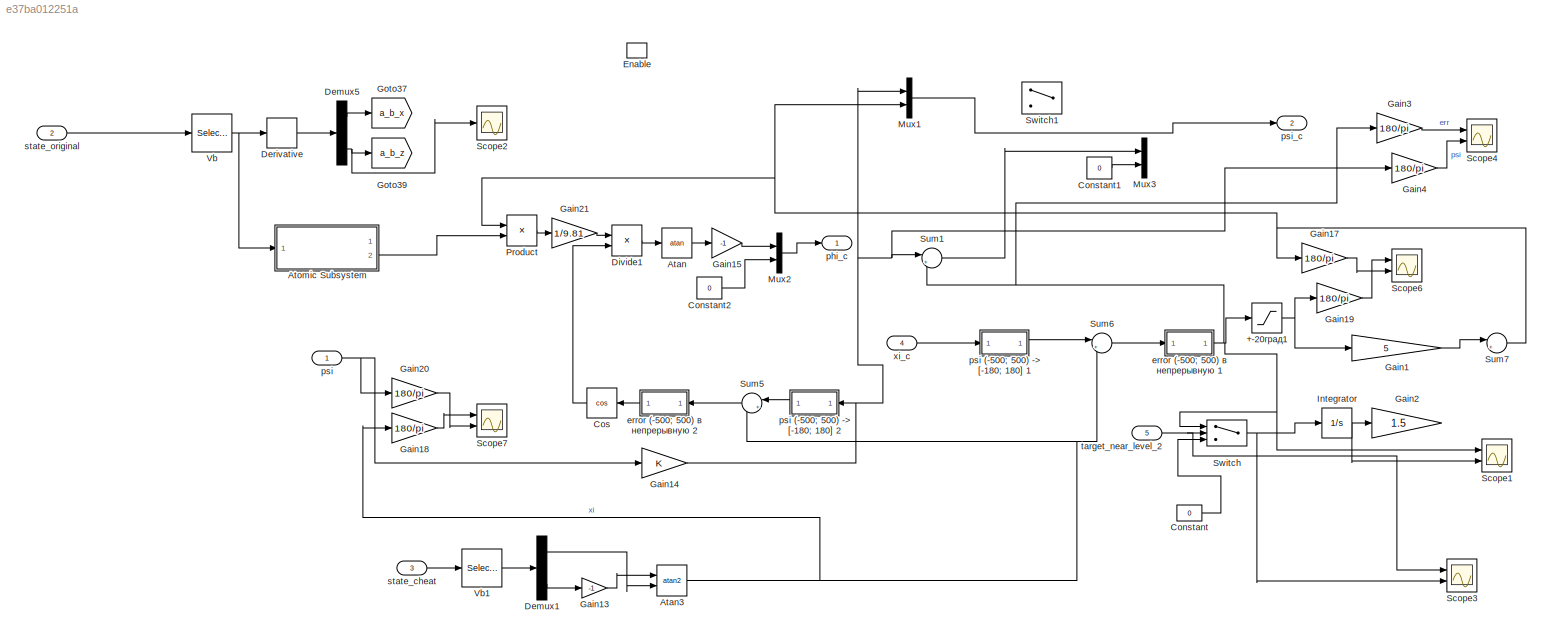
MODEL slx_e37ba012251a
KIND model
CONFIG AbsTol = auto
CONFIG EnableMultiTasking = off
CONFIG FixedStep = auto
CONFIG MaxStep = auto
CONFIG MinStep = auto
CONFIG RelTol = 1e-3
CONFIG SampleTimeConstraint = Unconstrained
CONFIG Solver = VariableStepAuto
CONFIG SolverName = VariableStepAuto
CONFIG StartTime = 0.0
CONFIG StopTime = 10.0
BLOCK [Saturate] +-20град1
  LowerLimit = -deg2rad(20)
  UpperLimit = deg2rad(20)
BLOCK [Trigonometry] Atan
  Operator = atan
  Ports = [1, 1]
BLOCK [Trigonometry] Atan3
  Operator = atan2
  Ports = [2, 1]
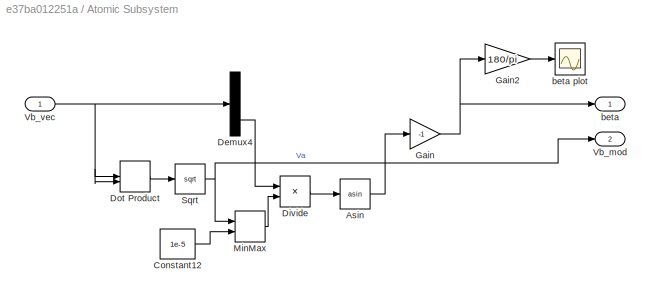
BLOCK [SubSystem] Atomic Subsystem
  Ports = [1, 2]
  RequestExecContextInheritance = off
  TreatAsAtomicUnit = on
BLOCK [Trigonometry] Atomic Subsystem/Asin
  Operator = asin
  Ports = [1, 1]
BLOCK [Constant] Atomic Subsystem/Constant12
  Value = 1e-5
BLOCK [Demux] Atomic Subsystem/Demux4
  Outputs = 3
  Ports = [1, 3]
BLOCK [Product] Atomic Subsystem/Divide
  Inputs = */
  Ports = [2, 1]
BLOCK [DotProduct] Atomic Subsystem/Dot Product
  OutDataTypeStr = Inherit: Inherit via internal rule
BLOCK [Gain] Atomic Subsystem/Gain
  Gain = -1
BLOCK [Gain] Atomic Subsystem/Gain2
  Gain = 180/pi
BLOCK [MinMax] Atomic Subsystem/MinMax
  Function = max
  Inputs = 2
  Ports = [2, 1]
BLOCK [Sqrt] Atomic Subsystem/Sqrt
BLOCK [Outport] Atomic Subsystem/Vb_mod
  Port = 2
BLOCK [Inport] Atomic Subsystem/Vb_vec
BLOCK [Outport] Atomic Subsystem/beta
BLOCK [Scope] Atomic Subsystem/beta plot
  Floating = off
  NumInputPorts = 1
  Ports = [1]
  ScopeSpecificationString = Simulink.scopes.TimeScopeBlockCfg('CurrentConfiguration', extmgr.ConfigurationSet(extmgr.Configuration('Core','General UI',true),extmgr.Configuration('Core','Source UI',true),extmgr.Configuration('Sources','WiredSimulink',true),extmgr.Configuration('Visuals','Time Domain',true),extmgr.Configuration('Tools','Plot Navigation',true),extmgr.Configuration('Tools','Measurements',true)),'Version','2020a'...<+1ch>
BLOCK [Constant] Constant
  Value = 0
BLOCK [Constant] Constant1
  Value = 0
BLOCK [Constant] Constant2
  Value = 0
BLOCK [Trigonometry] Cos
  NameLocation = top
  Operator = cos
  Ports = [1, 1]
BLOCK [Demux] Demux1
  Outputs = 3
  Ports = [1, 3]
BLOCK [Demux] Demux5
  Outputs = 3
  Ports = [1, 3]
BLOCK [Derivative] Derivative
BLOCK [Product] Divide1
  Inputs = */
  Ports = [2, 1]
BLOCK [EnablePort] Enable
  Ports = []
BLOCK [Gain] Gain1
  Gain = 5
BLOCK [Gain] Gain13
  Gain = -1
BLOCK [Gain] Gain14
BLOCK [Gain] Gain15
  Gain = -1
BLOCK [Gain] Gain17
  Gain = 180/pi
BLOCK [Gain] Gain18
  Gain = 180/pi
BLOCK [Gain] Gain19
  Gain = 180/pi
BLOCK [Gain] Gain2
  Gain = 1.5
BLOCK [Gain] Gain20
  Gain = 180/pi
BLOCK [Gain] Gain21
  Gain = 1/9.81
BLOCK [Gain] Gain3
  Gain = 180/pi
BLOCK [Gain] Gain4
  Gain = 180/pi
BLOCK [Goto] Goto37
  GotoTag = a_b_x
BLOCK [Goto] Goto39
  GotoTag = a_b_z
BLOCK [Integrator] Integrator
  Ports = [1, 1]
BLOCK [Mux] Mux1
  DisplayOption = bar
  Inputs = 2
  Ports = [2, 1]
BLOCK [Mux] Mux2
  DisplayOption = bar
  Inputs = 2
  Ports = [2, 1]
BLOCK [Mux] Mux3
  DisplayOption = bar
  Inputs = 2
  Ports = [2, 1]
BLOCK [Product] Product
  Ports = [2, 1]
BLOCK [Scope] Scope1
  Floating = off
  NumInputPorts = 2
  Ports = [2]
  ScopeSpecificationString = Simulink.scopes.TimeScopeBlockCfg('CurrentConfiguration', extmgr.ConfigurationSet(extmgr.Configuration('Core','General UI',true),extmgr.Configuration('Core','Source UI',true),extmgr.Configuration('Sources','WiredSimulink',true,'DataLoggingVariableName','ScopeData1'),extmgr.Configuration('Visuals','Time Domain',true,'SerializedDisplays',{struct('MinYLimReal','-1.70408','MaxYLimReal','2.80734','YLab...<+1593ch>
BLOCK [Scope] Scope2
  Floating = off
  NumInputPorts = 1
  Ports = [1]
  ScopeSpecificationString = Simulink.scopes.TimeScopeBlockCfg('CurrentConfiguration', extmgr.ConfigurationSet(extmgr.Configuration('Core','General UI',true),extmgr.Configuration('Core','Source UI',true),extmgr.Configuration('Sources','WiredSimulink',true,'DataLoggingVariableName','ScopeData3'),extmgr.Configuration('Visuals','Time Domain',true,'SerializedDisplays',{struct('MinYLimReal','-16.01854','MaxYLimReal','42.66082','YL...<+1562ch>
BLOCK [Scope] Scope3
  Floating = off
  NumInputPorts = 2
  Ports = [2]
  ScopeSpecificationString = Simulink.scopes.TimeScopeBlockCfg('CurrentConfiguration', extmgr.ConfigurationSet(extmgr.Configuration('Core','General UI',true),extmgr.Configuration('Core','Source UI',true),extmgr.Configuration('Sources','WiredSimulink',true,'DataLoggingVariableName','ScopeData1'),extmgr.Configuration('Visuals','Time Domain',true,'SerializedDisplays',{struct('MinYLimReal','-1.80298','MaxYLimReal','1.31144','YLab...<+1575ch>
BLOCK [Scope] Scope4
  Floating = off
  NumInputPorts = 2
  Ports = [2]
  ScopeSpecificationString = Simulink.scopes.TimeScopeBlockCfg('CurrentConfiguration', extmgr.ConfigurationSet(extmgr.Configuration('Core','General UI',true),extmgr.Configuration('Core','Source UI',true),extmgr.Configuration('Sources','WiredSimulink',true,'DataLoggingVariableName','ScopeData1'),extmgr.Configuration('Visuals','Time Domain',true,'SerializedDisplays',{struct('MinYLimReal','-249.18985','MaxYLimReal','445.25356','...<+1570ch>
BLOCK [Scope] Scope6
  Floating = off
  NumInputPorts = 2
  Ports = [2]
  ScopeSpecificationString = Simulink.scopes.TimeScopeBlockCfg('CurrentConfiguration', extmgr.ConfigurationSet(extmgr.Configuration('Core','General UI',true),extmgr.Configuration('Core','Source UI',true),extmgr.Configuration('Sources','WiredSimulink',true,'DataLoggingVariableName','ScopeData6'),extmgr.Configuration('Visuals','Time Domain',true,'SerializedDisplays',{struct('MinYLimReal','-1.00000','MaxYLimReal','1.00000','YLab...<+1568ch>
BLOCK [Scope] Scope7
  Floating = off
  NumInputPorts = 2
  Ports = [2]
  ScopeSpecificationString = Simulink.scopes.TimeScopeBlockCfg('CurrentConfiguration', extmgr.ConfigurationSet(extmgr.Configuration('Core','General UI',true),extmgr.Configuration('Core','Source UI',true),extmgr.Configuration('Sources','WiredSimulink',true,'DataLoggingVariableName','ScopeData7'),extmgr.Configuration('Visuals','Time Domain',true,'SerializedDisplays',{struct('MinYLimReal','-202.49004','MaxYLimReal','22.49889','Y...<+1606ch>
BLOCK [Sum] Sum1
  Inputs = |++
  Ports = [2, 1]
BLOCK [Sum] Sum5
  Inputs = |+-
  NameLocation = top
  Ports = [2, 1]
BLOCK [Sum] Sum6
  Inputs = |+-
  Ports = [2, 1]
BLOCK [Sum] Sum7
  Inputs = |++
  Ports = [2, 1]
BLOCK [Switch] Switch
  Criteria = u2 > Threshold
  InputSameDT = off
  SaturateOnIntegerOverflow = off
BLOCK [Switch] Switch1
  Criteria = u2 > Threshold
  InputSameDT = off
  SaturateOnIntegerOverflow = off
BLOCK [Selector] Vb
  IndexOptions = Index vector (dialog)
  Indices = [4:6]
  InputPortWidth = 12
  OutputSizes = 1
  Ports = [1, 1]
BLOCK [Selector] Vb1
  IndexOptions = Index vector (dialog)
  Indices = [4:6]
  InputPortWidth = 15
  OutputSizes = 1
  Ports = [1, 1]
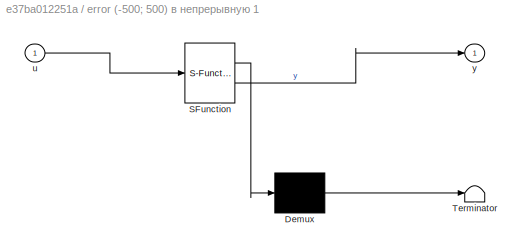
BLOCK [SubSystem] error (-500; 500) в непрерывную 1
  ErrorFcn = Stateflow.Translate.translate
  PermitHierarchicalResolution = ExplicitOnly
  Ports = [1, 1]
  RequestExecContextInheritance = off
  SFBlockType = MATLAB Function
  TreatAsAtomicUnit = on
BLOCK [Demux] error (-500; 500) в непрерывную 1/ Demux 
  Outputs = 1
  Ports = [1, 1]
BLOCK [S-Function] error (-500; 500) в непрерывную 1/ SFunction 
  EnableBusSupport = on
  FunctionName = sf_sfun
  PortCounts = [1 2]
  Ports = [1, 2]
  SFcnIsStateOwnerBlock = off
  SFunctionDeploymentMode = off
  Tag = Stateflow S-Function 3
BLOCK [Terminator] error (-500; 500) в непрерывную 1/ Terminator 
BLOCK [Inport] error (-500; 500) в непрерывную 1/u
BLOCK [Outport] error (-500; 500) в непрерывную 1/y
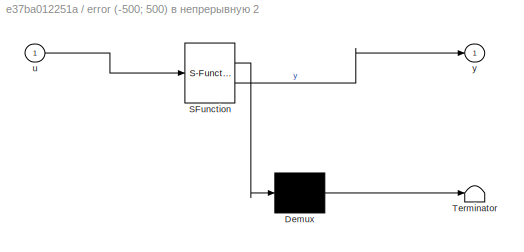
BLOCK [SubSystem] error (-500; 500) в непрерывную 2
  ErrorFcn = Stateflow.Translate.translate
  NameLocation = top
  PermitHierarchicalResolution = ExplicitOnly
  Ports = [1, 1]
  RequestExecContextInheritance = off
  SFBlockType = MATLAB Function
  TreatAsAtomicUnit = on
BLOCK [Demux] error (-500; 500) в непрерывную 2/ Demux 
  Outputs = 1
  Ports = [1, 1]
BLOCK [S-Function] error (-500; 500) в непрерывную 2/ SFunction 
  EnableBusSupport = on
  FunctionName = sf_sfun
  PortCounts = [1 2]
  Ports = [1, 2]
  SFcnIsStateOwnerBlock = off
  SFunctionDeploymentMode = off
  Tag = Stateflow S-Function 4
BLOCK [Terminator] error (-500; 500) в непрерывную 2/ Terminator 
BLOCK [Inport] error (-500; 500) в непрерывную 2/u
BLOCK [Outport] error (-500; 500) в непрерывную 2/y
BLOCK [Outport] phi_c
BLOCK [Inport] psi
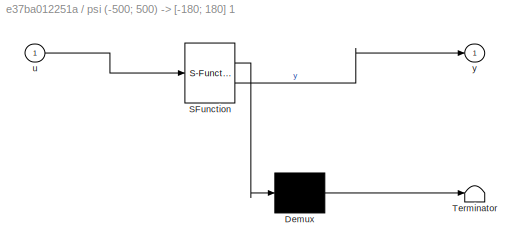
BLOCK [SubSystem] psi (-500; 500) -> [-180; 180] 1
  ErrorFcn = Stateflow.Translate.translate
  PermitHierarchicalResolution = ExplicitOnly
  Ports = [1, 1]
  RequestExecContextInheritance = off
  SFBlockType = MATLAB Function
  TreatAsAtomicUnit = on
BLOCK [Demux] psi (-500; 500) -> [-180; 180] 1/ Demux 
  Outputs = 1
  Ports = [1, 1]
BLOCK [S-Function] psi (-500; 500) -> [-180; 180] 1/ SFunction 
  EnableBusSupport = on
  FunctionName = sf_sfun
  PortCounts = [1 2]
  Ports = [1, 2]
  SFcnIsStateOwnerBlock = off
  SFunctionDeploymentMode = off
  Tag = Stateflow S-Function 2
BLOCK [Terminator] psi (-500; 500) -> [-180; 180] 1/ Terminator 
BLOCK [Inport] psi (-500; 500) -> [-180; 180] 1/u
BLOCK [Outport] psi (-500; 500) -> [-180; 180] 1/y
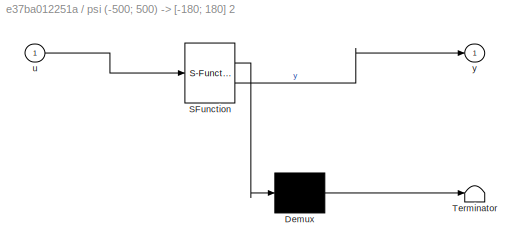
BLOCK [SubSystem] psi (-500; 500) -> [-180; 180] 2
  ErrorFcn = Stateflow.Translate.translate
  NameLocation = top
  PermitHierarchicalResolution = ExplicitOnly
  Ports = [1, 1]
  RequestExecContextInheritance = off
  SFBlockType = MATLAB Function
  TreatAsAtomicUnit = on
BLOCK [Demux] psi (-500; 500) -> [-180; 180] 2/ Demux 
  Outputs = 1
  Ports = [1, 1]
BLOCK [S-Function] psi (-500; 500) -> [-180; 180] 2/ SFunction 
  EnableBusSupport = on
  FunctionName = sf_sfun
  PortCounts = [1 2]
  Ports = [1, 2]
  SFcnIsStateOwnerBlock = off
  SFunctionDeploymentMode = off
  Tag = Stateflow S-Function 1
BLOCK [Terminator] psi (-500; 500) -> [-180; 180] 2/ Terminator 
BLOCK [Inport] psi (-500; 500) -> [-180; 180] 2/u
BLOCK [Outport] psi (-500; 500) -> [-180; 180] 2/y
BLOCK [Outport] psi_c
  Port = 2
BLOCK [Inport] state_cheat
  Port = 3
BLOCK [Inport] state_original
  Port = 2
BLOCK [Inport] target_near_level_2
  OutDataTypeStr = boolean
  Port = 5
BLOCK [Inport] xi_c
  Port = 4
NET +-20град1:1 -> Gain19:1, Gain1:1
NET Atan3:1 -> Gain18:1, Sum5:2, Sum6:2
LINE Atan:1 -> Gain15:1
LINE Atomic Subsystem/Asin:1 -> Atomic Subsystem/Gain:1
LINE Atomic Subsystem/Constant12:1 -> Atomic Subsystem/MinMax:2
LINE Atomic Subsystem/Demux4:3 -> Atomic Subsystem/Divide:1
LINE Atomic Subsystem/Divide:1 -> Atomic Subsystem/Asin:1
LINE Atomic Subsystem/Dot Product:1 -> Atomic Subsystem/Sqrt:1
LINE Atomic Subsystem/Gain2:1 -> Atomic Subsystem/beta plot:1
NET Atomic Subsystem/Gain:1 -> Atomic Subsystem/Gain2:1, Atomic Subsystem/beta:1
LINE Atomic Subsystem/MinMax:1 -> Atomic Subsystem/Divide:2
NET Atomic Subsystem/Sqrt:1 -> Atomic Subsystem/MinMax:1, Atomic Subsystem/Vb_mod:1
NET Atomic Subsystem/Vb_vec:1 -> Atomic Subsystem/Demux4:1, Atomic Subsystem/Dot Product:1, Atomic Subsystem/Dot Product:2
LINE Atomic Subsystem:2 -> Product:2
LINE Constant1:1 -> Mux3:2
LINE Constant2:1 -> Mux2:2
LINE Constant:1 -> Switch:3
LINE Cos:1 -> Divide1:2
LINE Demux1:1 -> Atan3:2
LINE Demux1:3 -> Gain13:1
LINE Demux5:1 -> Goto37:1
NET Demux5:3 -> Goto39:1, Scope2:1
LINE Derivative:1 -> Demux5:1
LINE Divide1:1 -> Atan:1
LINE Gain13:1 -> Atan3:1
NET Gain14:1 -> Gain4:1, Mux1:1, Sum1:1, psi (-500; 500) -> [-180; 180] 2:1
LINE Gain15:1 -> Mux2:1
LINE Gain17:1 -> Scope6:2
LINE Gain18:1 -> Scope7:1
LINE Gain19:1 -> Scope6:1
LINE Gain1:1 -> Sum7:1
LINE Gain20:1 -> Scope7:2
LINE Gain21:1 -> Divide1:1
LINE Gain3:1 -> Scope4:1
LINE Gain4:1 -> Scope4:2
NET Integrator:1 -> Gain2:1, Scope1:2
LINE Mux1:1 -> psi_c:1
LINE Mux2:1 -> phi_c:1
LINE Product:1 -> Gain21:1
LINE Sum1:1 -> Mux3:1
LINE Sum5:1 -> error (-500; 500) в непрерывную 2:1
LINE Sum6:1 -> error (-500; 500) в непрерывную 1:1
NET Sum7:1 -> Gain17:1, Mux1:2, Product:1
NET Switch:1 -> Integrator:1, Scope3:2
LINE Vb1:1 -> Demux1:1
NET Vb:1 -> Atomic Subsystem:1, Derivative:1
NET error (-500; 500) в непрерывную 1:1 -> +-20град1:1, Gain3:1, Scope1:1, Sum1:2, Switch:1
LINE error (-500; 500) в непрерывную 2:1 -> Cos:1
LINE psi (-500; 500) -> [-180; 180] 1:1 -> Sum6:1
LINE psi (-500; 500) -> [-180; 180] 2:1 -> Sum5:1
NET psi:1 -> Gain14:1, Gain20:1
LINE state_cheat:1 -> Vb1:1
LINE state_original:1 -> Vb:1
NET target_near_level_2:1 -> Scope3:1, Switch:2
LINE xi_c:1 -> psi (-500; 500) -> [-180; 180] 1:1
note: NET lines group one-source signal fan-out (src -> all destinations, sorted); 1:1 wires keep LINE
CHART psi (-500; 500) -> [-180; 180] 1 states=1 transitions=1
  STATE_LABEL 'eML_blk_kernel()'
  STATE_LABEL 'SCRIPT:\nfunction y = fcn(u)\n\ny = u - 2*pi*sign(u)*(abs(u) > pi);\n'
CHART error (-500; 500) в непрерывную 1 states=1 transitions=1
  STATE_LABEL 'eML_blk_kernel()'
  STATE_LABEL 'SCRIPT:\nfunction y = fcn(u)\n\ny = u + 2*pi*sign(pi-u).*(abs(u)>pi);\n'
CHART error (-500; 500) в непрерывную 2 states=1 transitions=1
  STATE_LABEL 'eML_blk_kernel()'
  STATE_LABEL 'SCRIPT:\nfunction y = fcn(u)\n\ny = u + 2*pi*sign(pi-u).*(abs(u)>pi);\n'
CHART psi (-500; 500) -> [-180; 180] 2 states=1 transitions=1
  STATE_LABEL 'eML_blk_kernel()'
  STATE_LABEL 'SCRIPT:\nfunction y = fcn(u)\n\ny = u - 2*pi*sign(u)*(abs(u) > pi);\n'
CHART  states=0 transitions=0
CHART  states=0 transitions=0
CHART  states=0 transitions=0
CHART  states=0 transitions=0
